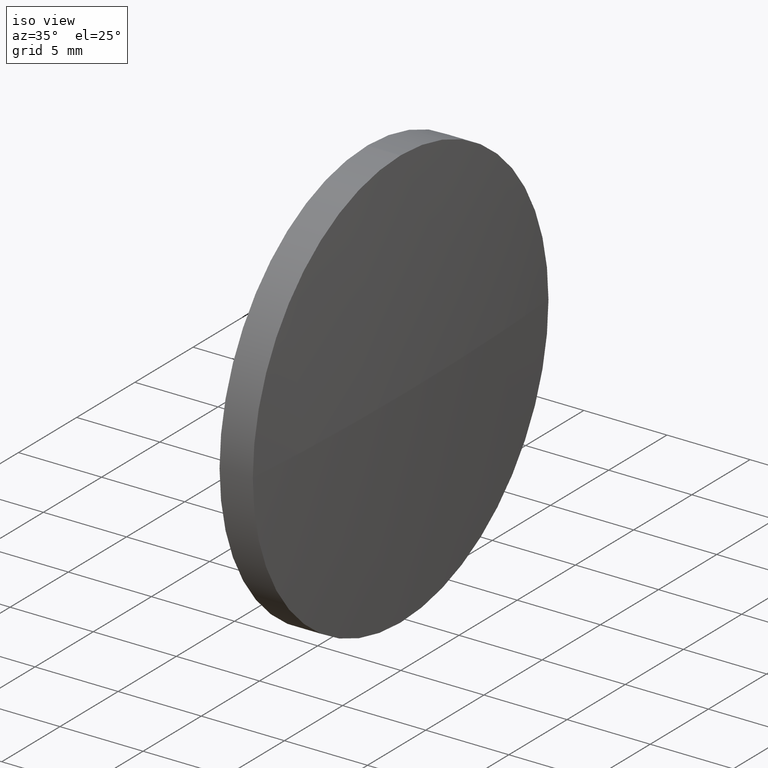
[diagram: clean part render]
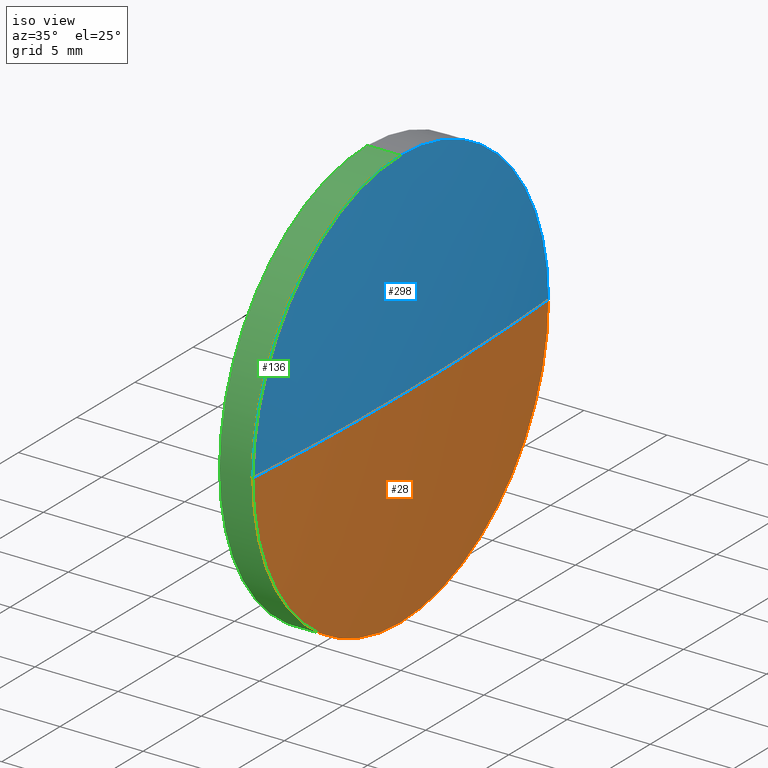
[diagram: same view with three faces highlighted in distinct colors, each labeled with its STEP entity id]
A machine part, iso view with three faces highlighted in distinct colors.
Their STEP definitions:

[orange] entity #28 — the highlighted spherical surface has radius 179.315 mm.
#13 = EDGE_CURVE ( 'NONE', #88, #316, #131, .T. ) ;
#21 = CARTESIAN_POINT ( 'NONE',  ( 87.90817091751966900, 48.61611302318490100, 0.0000000000000000000 ) ) ;
#22 = ORIENTED_EDGE ( 'NONE', *, *, #341, .T. ) ;
#28 = ADVANCED_FACE ( 'NONE', ( #147 ), #117, .T. ) ;
#29 = DIRECTION ( 'NONE',  ( 0.0000000000000000000, -1.000000000000000000, -1.224646799147353000E-016 ) ) ;
#44 = VERTEX_POINT ( 'NONE', #21 ) ;
#55 = AXIS2_PLACEMENT_3D ( 'NONE', #242, #166, #325 ) ;
#58 = CARTESIAN_POINT ( 'NONE',  ( 87.45786520323396500, 61.31611302318459900, 1.555301434917100400E-015 ) ) ;
#60 = CARTESIAN_POINT ( 'NONE',  ( -91.40642593639381600, 48.61611302318491600, 0.0000000000000000000 ) ) ;
#62 = AXIS2_PLACEMENT_3D ( 'NONE', #159, #233, #180 ) ;
#78 = ORIENTED_EDGE ( 'NONE', *, *, #149, .F. ) ;
#88 = VERTEX_POINT ( 'NONE', #58 ) ;
#95 = ORIENTED_EDGE ( 'NONE', *, *, #13, .F. ) ;
#97 = CARTESIAN_POINT ( 'NONE',  ( 87.45786520323396500, 48.61611302318478100, 0.0000000000000000000 ) ) ;
#109 = DIRECTION ( 'NONE',  ( -1.000000000000000000, -0.0000000000000000000, -0.0000000000000000000 ) ) ;
#113 = CARTESIAN_POINT ( 'NONE',  ( 87.45786520323396500, 35.91611302318509000, 0.0000000000000000000 ) ) ;
#117 = SPHERICAL_SURFACE ( 'NONE', #55, 179.3145968539134900 ) ;
#120 = DIRECTION ( 'NONE',  ( 0.0000000000000000000, 0.0000000000000000000, -1.000000000000000000 ) ) ;
#131 = CIRCLE ( 'NONE', #207, 12.69999999999999600 ) ;
#147 = FACE_OUTER_BOUND ( 'NONE', #197, .T. ) ;
#149 = EDGE_CURVE ( 'NONE', #316, #229, #188, .T. ) ;
#155 = EDGE_CURVE ( 'NONE', #44, #88, #309, .T. ) ;
#159 = CARTESIAN_POINT ( 'NONE',  ( 87.45786520323396500, 48.61611302318478100, 0.0000000000000000000 ) ) ;
#164 = DIRECTION ( 'NONE',  ( 0.0000000000000000000, -1.224646799147353200E-016, 1.000000000000000000 ) ) ;
#166 = DIRECTION ( 'NONE',  ( 0.0000000000000000000, 0.0000000000000000000, 1.000000000000000000 ) ) ;
#180 = DIRECTION ( 'NONE',  ( 0.0000000000000000000, 0.0000000000000000000, 1.000000000000000000 ) ) ;
#188 = CIRCLE ( 'NONE', #62, 12.69999999999999600 ) ;
#197 = EDGE_LOOP ( 'NONE', ( #320, #22, #78, #95 ) ) ;
#207 = AXIS2_PLACEMENT_3D ( 'NONE', #97, #109, #290 ) ;
#214 = CARTESIAN_POINT ( 'NONE',  ( 87.45786520323396500, 48.61611302318478100, -12.69999999999999600 ) ) ;
#229 = VERTEX_POINT ( 'NONE', #113 ) ;
#233 = DIRECTION ( 'NONE',  ( -1.000000000000000000, -0.0000000000000000000, -0.0000000000000000000 ) ) ;
#239 = CIRCLE ( 'NONE', #247, 179.3145968539134900 ) ;
#242 = CARTESIAN_POINT ( 'NONE',  ( -91.40642593639381600, 48.61611302318491600, 0.0000000000000000000 ) ) ;
#247 = AXIS2_PLACEMENT_3D ( 'NONE', #60, #120, #330 ) ;
#260 = CARTESIAN_POINT ( 'NONE',  ( -91.40642593639381600, 48.61611302318491600, 0.0000000000000000000 ) ) ;
#290 = DIRECTION ( 'NONE',  ( 0.0000000000000000000, 0.0000000000000000000, 1.000000000000000000 ) ) ;
#291 = AXIS2_PLACEMENT_3D ( 'NONE', #260, #164, #29 ) ;
#309 = CIRCLE ( 'NONE', #291, 179.3145968539134900 ) ;
#316 = VERTEX_POINT ( 'NONE', #214 ) ;
#320 = ORIENTED_EDGE ( 'NONE', *, *, #155, .F. ) ;
#325 = DIRECTION ( 'NONE',  ( 0.0000000000000000000, -1.000000000000000000, 0.0000000000000000000 ) ) ;
#330 = DIRECTION ( 'NONE',  ( -1.000000000000000000, 0.0000000000000000000, 0.0000000000000000000 ) ) ;
#341 = EDGE_CURVE ( 'NONE', #44, #229, #239, .T. ) ;

[blue] entity #298 — the highlighted spherical surface has radius 179.315 mm.
#9 = ORIENTED_EDGE ( 'NONE', *, *, #265, .F. ) ;
#21 = CARTESIAN_POINT ( 'NONE',  ( 87.90817091751966900, 48.61611302318490100, 0.0000000000000000000 ) ) ;
#29 = DIRECTION ( 'NONE',  ( 0.0000000000000000000, -1.000000000000000000, -1.224646799147353000E-016 ) ) ;
#34 = ORIENTED_EDGE ( 'NONE', *, *, #341, .F. ) ;
#39 = CIRCLE ( 'NONE', #160, 12.69999999999999600 ) ;
#44 = VERTEX_POINT ( 'NONE', #21 ) ;
#58 = CARTESIAN_POINT ( 'NONE',  ( 87.45786520323396500, 61.31611302318459900, 1.555301434917100400E-015 ) ) ;
#60 = CARTESIAN_POINT ( 'NONE',  ( -91.40642593639381600, 48.61611302318491600, 0.0000000000000000000 ) ) ;
#83 = DIRECTION ( 'NONE',  ( 0.0000000000000000000, 0.0000000000000000000, 1.000000000000000000 ) ) ;
#87 = DIRECTION ( 'NONE',  ( 0.0000000000000000000, -1.000000000000000000, 0.0000000000000000000 ) ) ;
#88 = VERTEX_POINT ( 'NONE', #58 ) ;
#96 = CARTESIAN_POINT ( 'NONE',  ( 87.45786520323396500, 48.61611302318478100, 0.0000000000000000000 ) ) ;
#113 = CARTESIAN_POINT ( 'NONE',  ( 87.45786520323396500, 35.91611302318509000, 0.0000000000000000000 ) ) ;
#120 = DIRECTION ( 'NONE',  ( 0.0000000000000000000, 0.0000000000000000000, -1.000000000000000000 ) ) ;
#123 = AXIS2_PLACEMENT_3D ( 'NONE', #139, #83, #87 ) ;
#128 = EDGE_CURVE ( 'NONE', #229, #176, #39, .T. ) ;
#139 = CARTESIAN_POINT ( 'NONE',  ( -91.40642593639381600, 48.61611302318491600, 0.0000000000000000000 ) ) ;
#142 = FACE_OUTER_BOUND ( 'NONE', #284, .T. ) ;
#143 = DIRECTION ( 'NONE',  ( -1.000000000000000000, -0.0000000000000000000, -0.0000000000000000000 ) ) ;
#145 = DIRECTION ( 'NONE',  ( 0.0000000000000000000, 0.0000000000000000000, 1.000000000000000000 ) ) ;
#155 = EDGE_CURVE ( 'NONE', #44, #88, #309, .T. ) ;
#160 = AXIS2_PLACEMENT_3D ( 'NONE', #96, #202, #206 ) ;
#164 = DIRECTION ( 'NONE',  ( 0.0000000000000000000, -1.224646799147353200E-016, 1.000000000000000000 ) ) ;
#176 = VERTEX_POINT ( 'NONE', #179 ) ;
#179 = CARTESIAN_POINT ( 'NONE',  ( 87.45786520323396500, 48.61611302318478100, 12.69999999999999600 ) ) ;
#193 = CIRCLE ( 'NONE', #328, 12.69999999999999600 ) ;
#202 = DIRECTION ( 'NONE',  ( -1.000000000000000000, -0.0000000000000000000, -0.0000000000000000000 ) ) ;
#206 = DIRECTION ( 'NONE',  ( 0.0000000000000000000, 0.0000000000000000000, 1.000000000000000000 ) ) ;
#219 = ORIENTED_EDGE ( 'NONE', *, *, #155, .T. ) ;
#229 = VERTEX_POINT ( 'NONE', #113 ) ;
#239 = CIRCLE ( 'NONE', #247, 179.3145968539134900 ) ;
#247 = AXIS2_PLACEMENT_3D ( 'NONE', #60, #120, #330 ) ;
#256 = SPHERICAL_SURFACE ( 'NONE', #123, 179.3145968539134900 ) ;
#260 = CARTESIAN_POINT ( 'NONE',  ( -91.40642593639381600, 48.61611302318491600, 0.0000000000000000000 ) ) ;
#265 = EDGE_CURVE ( 'NONE', #176, #88, #193, .T. ) ;
#279 = ORIENTED_EDGE ( 'NONE', *, *, #128, .F. ) ;
#284 = EDGE_LOOP ( 'NONE', ( #34, #219, #9, #279 ) ) ;
#291 = AXIS2_PLACEMENT_3D ( 'NONE', #260, #164, #29 ) ;
#298 = ADVANCED_FACE ( 'NONE', ( #142 ), #256, .T. ) ;
#300 = CARTESIAN_POINT ( 'NONE',  ( 87.45786520323396500, 48.61611302318478100, 0.0000000000000000000 ) ) ;
#309 = CIRCLE ( 'NONE', #291, 179.3145968539134900 ) ;
#328 = AXIS2_PLACEMENT_3D ( 'NONE', #300, #143, #145 ) ;
#330 = DIRECTION ( 'NONE',  ( -1.000000000000000000, 0.0000000000000000000, 0.0000000000000000000 ) ) ;
#341 = EDGE_CURVE ( 'NONE', #44, #229, #239, .T. ) ;

[green] entity #136 — the highlighted cylindrical surface (partial cylindrical patch) has radius 12.7 mm, axis along (-1, -0, -0).
#26 = LINE ( 'NONE', #294, #201 ) ;
#27 = EDGE_CURVE ( 'NONE', #310, #57, #243, .T. ) ;
#32 = CARTESIAN_POINT ( 'NONE',  ( 85.45852234609110100, 35.91611302318484200, -1.555301434917118900E-015 ) ) ;
#37 = DIRECTION ( 'NONE',  ( -1.000000000000000000, -0.0000000000000000000, -0.0000000000000000000 ) ) ;
#39 = CIRCLE ( 'NONE', #160, 12.69999999999999600 ) ;
#52 = AXIS2_PLACEMENT_3D ( 'NONE', #331, #199, #235 ) ;
#56 = CARTESIAN_POINT ( 'NONE',  ( 85.45852234609111500, 48.61611302318478100, 0.0000000000000000000 ) ) ;
#57 = VERTEX_POINT ( 'NONE', #277 ) ;
#62 = AXIS2_PLACEMENT_3D ( 'NONE', #159, #233, #180 ) ;
#81 = ORIENTED_EDGE ( 'NONE', *, *, #273, .T. ) ;
#86 = VECTOR ( 'NONE', #37, 1000.000000000000000 ) ;
#96 = CARTESIAN_POINT ( 'NONE',  ( 87.45786520323396500, 48.61611302318478100, 0.0000000000000000000 ) ) ;
#104 = AXIS2_PLACEMENT_3D ( 'NONE', #56, #266, #115 ) ;
#108 = ORIENTED_EDGE ( 'NONE', *, *, #149, .T. ) ;
#113 = CARTESIAN_POINT ( 'NONE',  ( 87.45786520323396500, 35.91611302318509000, 0.0000000000000000000 ) ) ;
#115 = DIRECTION ( 'NONE',  ( 0.0000000000000000000, 0.0000000000000000000, 1.000000000000000000 ) ) ;
#119 = CYLINDRICAL_SURFACE ( 'NONE', #52, 12.69999999999999600 ) ;
#126 = EDGE_CURVE ( 'NONE', #316, #333, #327, .T. ) ;
#128 = EDGE_CURVE ( 'NONE', #229, #176, #39, .T. ) ;
#136 = ADVANCED_FACE ( 'NONE', ( #323 ), #119, .T. ) ;
#149 = EDGE_CURVE ( 'NONE', #316, #229, #188, .T. ) ;
#157 = EDGE_LOOP ( 'NONE', ( #343, #108, #263, #81, #296, #210 ) ) ;
#159 = CARTESIAN_POINT ( 'NONE',  ( 87.45786520323396500, 48.61611302318478100, 0.0000000000000000000 ) ) ;
#160 = AXIS2_PLACEMENT_3D ( 'NONE', #96, #202, #206 ) ;
#162 = DIRECTION ( 'NONE',  ( -1.000000000000000000, -0.0000000000000000000, -0.0000000000000000000 ) ) ;
#171 = AXIS2_PLACEMENT_3D ( 'NONE', #299, #185, #215 ) ;
#176 = VERTEX_POINT ( 'NONE', #179 ) ;
#179 = CARTESIAN_POINT ( 'NONE',  ( 87.45786520323396500, 48.61611302318478100, 12.69999999999999600 ) ) ;
#180 = DIRECTION ( 'NONE',  ( 0.0000000000000000000, 0.0000000000000000000, 1.000000000000000000 ) ) ;
#185 = DIRECTION ( 'NONE',  ( -1.000000000000000000, -0.0000000000000000000, -0.0000000000000000000 ) ) ;
#188 = CIRCLE ( 'NONE', #62, 12.69999999999999600 ) ;
#191 = CARTESIAN_POINT ( 'NONE',  ( 79.30540135083715800, 48.61611302318478100, -12.69999999999999600 ) ) ;
#199 = DIRECTION ( 'NONE',  ( -1.000000000000000000, -0.0000000000000000000, -0.0000000000000000000 ) ) ;
#201 = VECTOR ( 'NONE', #162, 1000.000000000000000 ) ;
#202 = DIRECTION ( 'NONE',  ( -1.000000000000000000, -0.0000000000000000000, -0.0000000000000000000 ) ) ;
#206 = DIRECTION ( 'NONE',  ( 0.0000000000000000000, 0.0000000000000000000, 1.000000000000000000 ) ) ;
#210 = ORIENTED_EDGE ( 'NONE', *, *, #285, .F. ) ;
#214 = CARTESIAN_POINT ( 'NONE',  ( 87.45786520323396500, 48.61611302318478100, -12.69999999999999600 ) ) ;
#215 = DIRECTION ( 'NONE',  ( 0.0000000000000000000, 0.0000000000000000000, 1.000000000000000000 ) ) ;
#229 = VERTEX_POINT ( 'NONE', #113 ) ;
#233 = DIRECTION ( 'NONE',  ( -1.000000000000000000, -0.0000000000000000000, -0.0000000000000000000 ) ) ;
#235 = DIRECTION ( 'NONE',  ( 0.0000000000000000000, 0.0000000000000000000, 1.000000000000000000 ) ) ;
#243 = CIRCLE ( 'NONE', #171, 12.69999999999999600 ) ;
#263 = ORIENTED_EDGE ( 'NONE', *, *, #128, .T. ) ;
#266 = DIRECTION ( 'NONE',  ( -1.000000000000000000, -0.0000000000000000000, -0.0000000000000000000 ) ) ;
#271 = CIRCLE ( 'NONE', #104, 12.69999999999999600 ) ;
#273 = EDGE_CURVE ( 'NONE', #176, #57, #26, .T. ) ;
#277 = CARTESIAN_POINT ( 'NONE',  ( 85.45852234609111500, 48.61611302318478100, 12.69999999999999600 ) ) ;
#285 = EDGE_CURVE ( 'NONE', #333, #310, #271, .T. ) ;
#294 = CARTESIAN_POINT ( 'NONE',  ( 79.30540135083715800, 48.61611302318478100, 12.69999999999999600 ) ) ;
#296 = ORIENTED_EDGE ( 'NONE', *, *, #27, .F. ) ;
#297 = CARTESIAN_POINT ( 'NONE',  ( 85.45852234609111500, 48.61611302318478100, -12.69999999999999600 ) ) ;
#299 = CARTESIAN_POINT ( 'NONE',  ( 85.45852234609111500, 48.61611302318478100, 0.0000000000000000000 ) ) ;
#310 = VERTEX_POINT ( 'NONE', #32 ) ;
#316 = VERTEX_POINT ( 'NONE', #214 ) ;
#323 = FACE_OUTER_BOUND ( 'NONE', #157, .T. ) ;
#327 = LINE ( 'NONE', #191, #86 ) ;
#331 = CARTESIAN_POINT ( 'NONE',  ( 79.30540135083715800, 48.61611302318478100, 0.0000000000000000000 ) ) ;
#333 = VERTEX_POINT ( 'NONE', #297 ) ;
#343 = ORIENTED_EDGE ( 'NONE', *, *, #126, .F. ) ;